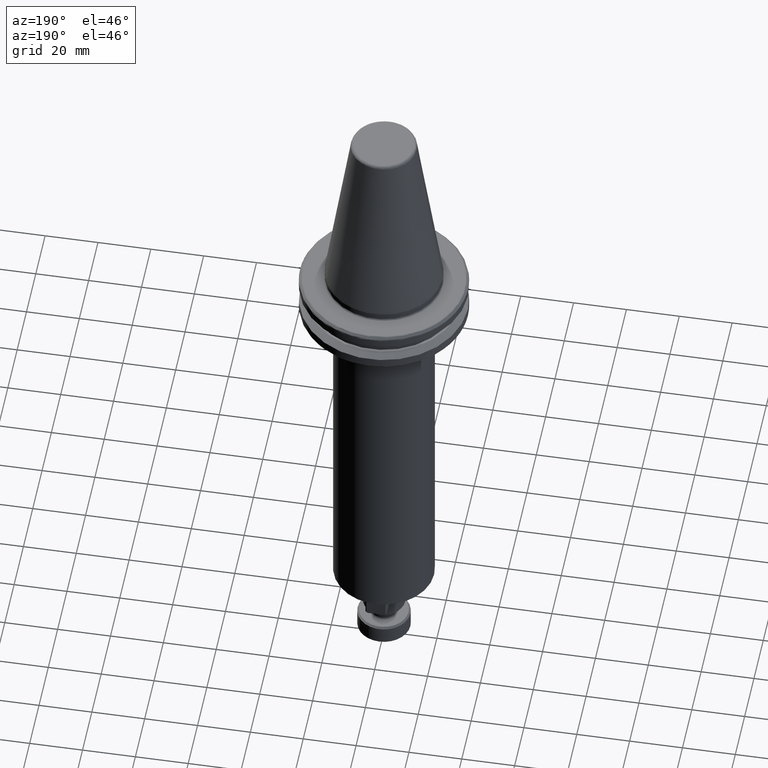
[diagram: clean part render]
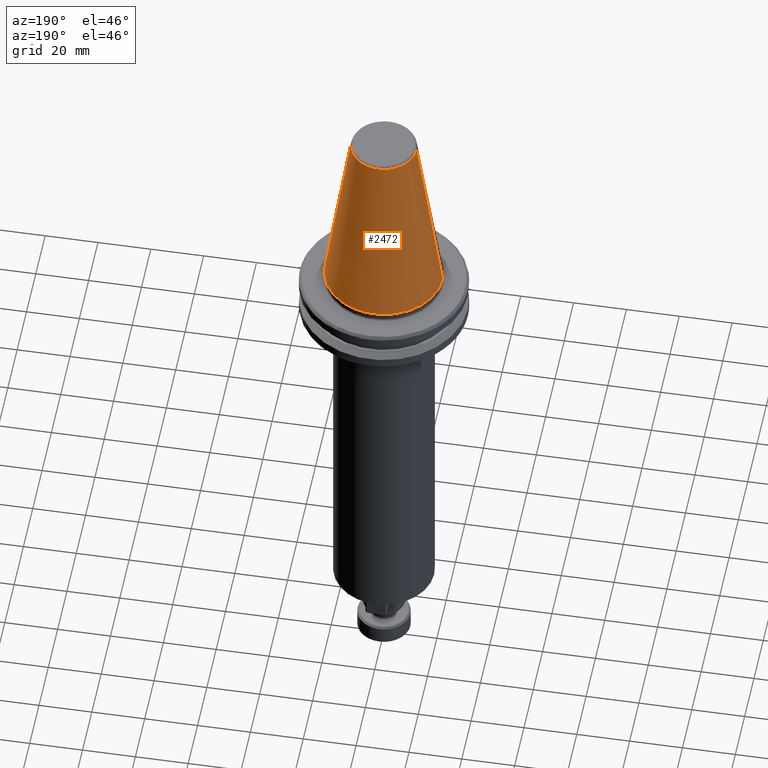
[diagram: same view with one face highlighted and labeled with its STEP entity id]
A machine part, auxiliary view. The second image highlights one B-rep face of the part: STEP entity #2472.
In plain terms, the highlighted conical surface has half-angle 8.297 deg.
Its self-contained STEP definition (entity closure, byte-faithful):
#25 = VERTEX_POINT ( 'NONE', #1260 ) ;
#146 = CIRCLE ( 'NONE', #3033, 12.37469537611110800 ) ;
#233 = ORIENTED_EDGE ( 'NONE', *, *, #2027, .F. ) ;
#340 = VERTEX_POINT ( 'NONE', #367 ) ;
#359 = CARTESIAN_POINT ( 'NONE',  ( 22.22500000000000100, 2.721777511104992800E-015, 0.0000000000000000000 ) ) ;
#367 = CARTESIAN_POINT ( 'NONE',  ( -12.37469537611110800, 0.0000000000000000000, 67.54430822726729400 ) ) ;
#410 = EDGE_LOOP ( 'NONE', ( #2328, #704, #1773, #233 ) ) ;
#666 = DIRECTION ( 'NONE',  ( 0.0000000000000000000, 0.0000000000000000000, -1.000000000000000000 ) ) ;
#704 = ORIENTED_EDGE ( 'NONE', *, *, #1757, .T. ) ;
#914 = VECTOR ( 'NONE', #984, 1000.000000000000000 ) ;
#964 = FACE_OUTER_BOUND ( 'NONE', #410, .T. ) ;
#984 = DIRECTION ( 'NONE',  ( -0.1443082272673070500, 0.0000000000000000000, -0.9895327864921743500 ) ) ;
#1007 = LINE ( 'NONE', #3949, #914 ) ;
#1015 = DIRECTION ( 'NONE',  ( 0.0000000000000000000, 0.0000000000000000000, -1.000000000000000000 ) ) ;
#1190 = CARTESIAN_POINT ( 'NONE',  ( 12.37469537611110800, 2.118620309691397300E-015, 67.54430822726729400 ) ) ;
#1259 = VERTEX_POINT ( 'NONE', #3174 ) ;
#1260 = CARTESIAN_POINT ( 'NONE',  ( -22.22500000000000100, 0.0000000000000000000, 0.0000000000000000000 ) ) ;
#1263 = VERTEX_POINT ( 'NONE', #1190 ) ;
#1468 = EDGE_CURVE ( 'NONE', #25, #1259, #4268, .T. ) ;
#1471 = VECTOR ( 'NONE', #2644, 1000.000000000000000 ) ;
#1585 = LINE ( 'NONE', #359, #1471 ) ;
#1654 = CARTESIAN_POINT ( 'NONE',  ( 0.0000000000000000000, 0.0000000000000000000, 0.0000000000000000000 ) ) ;
#1664 = EDGE_CURVE ( 'NONE', #340, #1263, #146, .T. ) ;
#1742 = CARTESIAN_POINT ( 'NONE',  ( 0.0000000000000000000, 0.0000000000000000000, 0.0000000000000000000 ) ) ;
#1757 = EDGE_CURVE ( 'NONE', #1263, #1259, #1585, .T. ) ;
#1773 = ORIENTED_EDGE ( 'NONE', *, *, #1468, .F. ) ;
#2027 = EDGE_CURVE ( 'NONE', #340, #25, #1007, .T. ) ;
#2070 = DIRECTION ( 'NONE',  ( 1.000000000000000000, 0.0000000000000000000, 9.822541477422708000E-017 ) ) ;
#2328 = ORIENTED_EDGE ( 'NONE', *, *, #1664, .T. ) ;
#2472 = ADVANCED_FACE ( 'NONE', ( #964 ), #4172, .T. ) ;
#2604 = CARTESIAN_POINT ( 'NONE',  ( 0.0000000000000000000, 0.0000000000000000000, 67.54430822726729400 ) ) ;
#2644 = DIRECTION ( 'NONE',  ( 0.1443082272673070500, 1.767266086135363700E-017, -0.9895327864921743500 ) ) ;
#2959 = DIRECTION ( 'NONE',  ( -1.000000000000000000, 0.0000000000000000000, 0.0000000000000000000 ) ) ;
#3033 = AXIS2_PLACEMENT_3D ( 'NONE', #2604, #666, #2959 ) ;
#3174 = CARTESIAN_POINT ( 'NONE',  ( 22.22500000000000100, 2.721777511104992800E-015, 0.0000000000000000000 ) ) ;
#3336 = DIRECTION ( 'NONE',  ( -1.000000000000000000, 0.0000000000000000000, 0.0000000000000000000 ) ) ;
#3534 = AXIS2_PLACEMENT_3D ( 'NONE', #1654, #1015, #3336 ) ;
#3949 = CARTESIAN_POINT ( 'NONE',  ( -22.22500000000000100, 0.0000000000000000000, 0.0000000000000000000 ) ) ;
#3999 = AXIS2_PLACEMENT_3D ( 'NONE', #1742, #4056, #2070 ) ;
#4056 = DIRECTION ( 'NONE',  ( -0.0000000000000000000, -0.0000000000000000000, -1.000000000000000000 ) ) ;
#4172 = CONICAL_SURFACE ( 'NONE', #3534, 22.22500000000000100, 0.1448138465474190500 ) ;
#4268 = CIRCLE ( 'NONE', #3999, 22.22500000000000500 ) ;